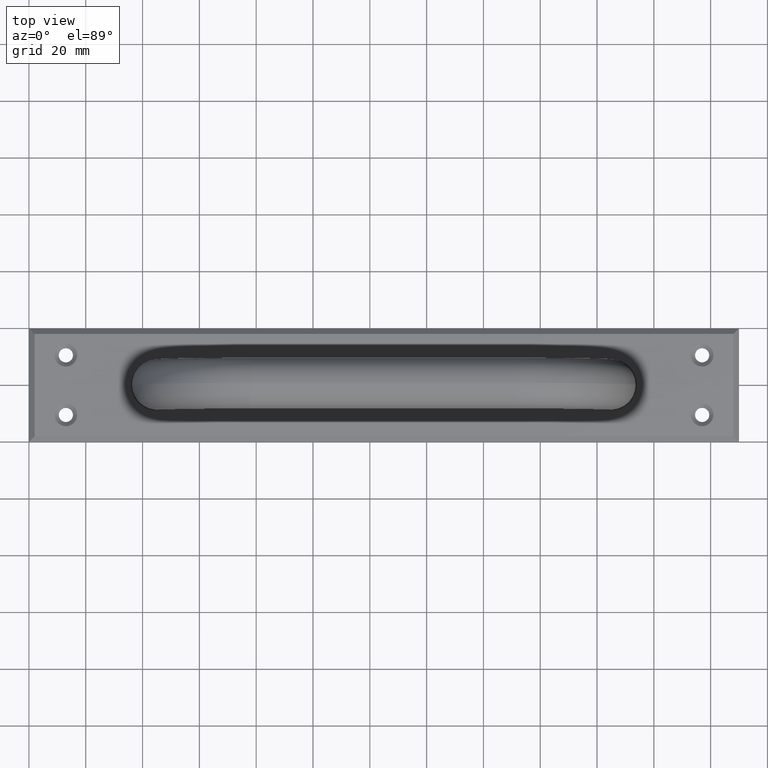
[diagram: clean part render]
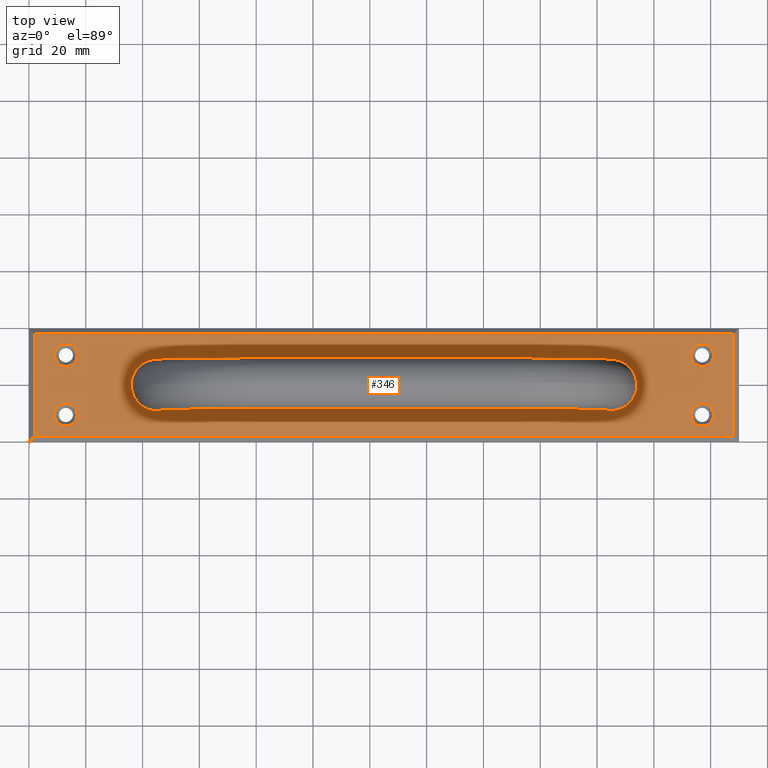
[diagram: same view with one face highlighted and labeled with its STEP entity id]
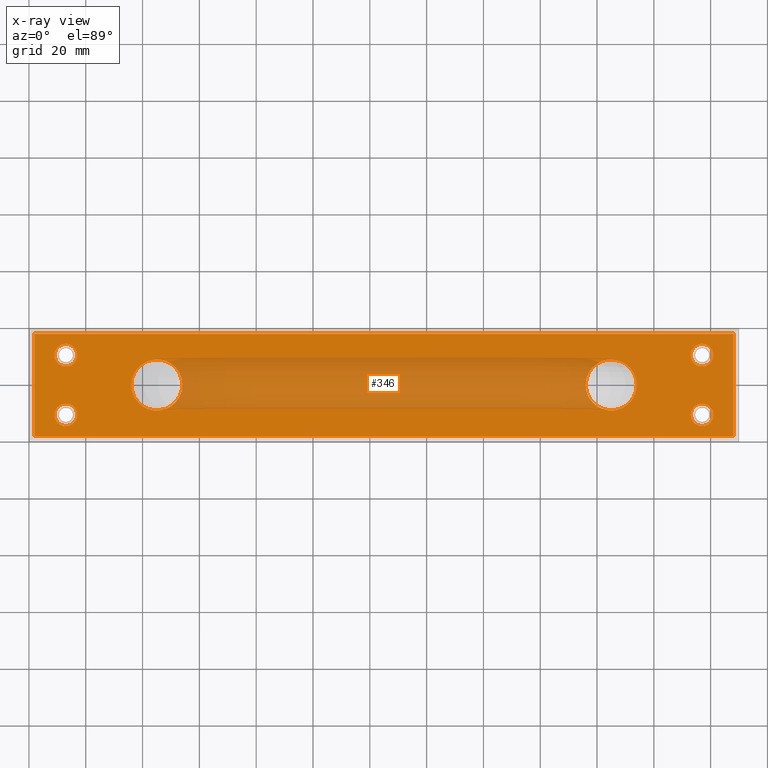
[diagram: x-ray of the same camera — body ghosted, the highlighted face saturated]
A machine part, top view. The second image highlights one B-rep face of the part: STEP entity #346.
The next image is the same camera in x-ray: the body ghosted, the highlighted face saturated — about 32% of this face is hidden behind the body in this view.
In plain terms, the highlighted planar face has unit normal (0, 0, 1).
Its self-contained STEP definition (entity closure, byte-faithful):
#16=LINE('',#557,#36);
#19=LINE('',#563,#39);
#20=LINE('',#565,#40);
#21=LINE('',#566,#41);
#36=VECTOR('',#465,36.);
#39=VECTOR('',#470,246.);
#40=VECTOR('',#471,36.);
#41=VECTOR('',#472,246.);
#56=PLANE('',#389);
#84=FACE_BOUND('',#145,.T.);
#85=FACE_BOUND('',#146,.T.);
#86=FACE_BOUND('',#147,.T.);
#87=FACE_BOUND('',#148,.T.);
#88=FACE_BOUND('',#149,.T.);
#89=FACE_BOUND('',#150,.T.);
#108=FACE_OUTER_BOUND('',#144,.T.);
#144=EDGE_LOOP('',(#279,#280,#281,#282));
#145=EDGE_LOOP('',(#283));
#146=EDGE_LOOP('',(#284));
#147=EDGE_LOOP('',(#285));
#148=EDGE_LOOP('',(#286));
#149=EDGE_LOOP('',(#287));
#150=EDGE_LOOP('',(#288));
#164=CIRCLE('',#359,9.);
#166=CIRCLE('',#362,9.);
#169=CIRCLE('',#369,4.);
#172=CIRCLE('',#374,4.);
#175=CIRCLE('',#379,4.);
#178=CIRCLE('',#384,4.);
#182=VERTEX_POINT('',#506);
#184=VERTEX_POINT('',#511);
#187=VERTEX_POINT('',#521);
#190=VERTEX_POINT('',#529);
#193=VERTEX_POINT('',#537);
#196=VERTEX_POINT('',#545);
#200=VERTEX_POINT('',#554);
#201=VERTEX_POINT('',#556);
#203=VERTEX_POINT('',#562);
#204=VERTEX_POINT('',#564);
#212=EDGE_CURVE('',#182,#182,#164,.T.);
#214=EDGE_CURVE('',#184,#184,#166,.T.);
#217=EDGE_CURVE('',#187,#187,#169,.T.);
#220=EDGE_CURVE('',#190,#190,#172,.T.);
#223=EDGE_CURVE('',#193,#193,#175,.T.);
#226=EDGE_CURVE('',#196,#196,#178,.T.);
#230=EDGE_CURVE('',#200,#201,#16,.T.);
#233=EDGE_CURVE('',#203,#200,#19,.T.);
#234=EDGE_CURVE('',#204,#203,#20,.T.);
#235=EDGE_CURVE('',#201,#204,#21,.T.);
#279=ORIENTED_EDGE('',*,*,#230,.F.);
#280=ORIENTED_EDGE('',*,*,#233,.F.);
#281=ORIENTED_EDGE('',*,*,#234,.F.);
#282=ORIENTED_EDGE('',*,*,#235,.F.);
#283=ORIENTED_EDGE('',*,*,#212,.T.);
#284=ORIENTED_EDGE('',*,*,#214,.T.);
#285=ORIENTED_EDGE('',*,*,#217,.T.);
#286=ORIENTED_EDGE('',*,*,#220,.T.);
#287=ORIENTED_EDGE('',*,*,#223,.T.);
#288=ORIENTED_EDGE('',*,*,#226,.T.);
#346=ADVANCED_FACE('',(#108,#84,#85,#86,#87,#88,#89),#56,.T.);
#359=AXIS2_PLACEMENT_3D('',#507,#404,#405);
#362=AXIS2_PLACEMENT_3D('',#512,#410,#411);
#369=AXIS2_PLACEMENT_3D('',#522,#424,#425);
#374=AXIS2_PLACEMENT_3D('',#530,#434,#435);
#379=AXIS2_PLACEMENT_3D('',#538,#444,#445);
#384=AXIS2_PLACEMENT_3D('',#546,#454,#455);
#389=AXIS2_PLACEMENT_3D('',#561,#468,#469);
#404=DIRECTION('center_axis',(0.,0.,-1.));
#405=DIRECTION('ref_axis',(1.,0.,0.));
#410=DIRECTION('center_axis',(0.,0.,-1.));
#411=DIRECTION('ref_axis',(-1.,0.,0.));
#424=DIRECTION('center_axis',(0.,0.,-1.));
#425=DIRECTION('ref_axis',(1.,0.,0.));
#434=DIRECTION('center_axis',(0.,0.,-1.));
#435=DIRECTION('ref_axis',(1.,0.,0.));
#444=DIRECTION('center_axis',(0.,0.,-1.));
#445=DIRECTION('ref_axis',(1.,0.,0.));
#454=DIRECTION('center_axis',(0.,0.,-1.));
#455=DIRECTION('ref_axis',(1.,0.,0.));
#465=DIRECTION('',(-3.67548784903353E-16,1.,0.));
#468=DIRECTION('center_axis',(0.,0.,1.));
#469=DIRECTION('ref_axis',(1.,0.,0.));
#470=DIRECTION('',(-1.,0.,0.));
#471=DIRECTION('',(0.,-1.,0.));
#472=DIRECTION('',(1.,-1.59872115546023E-16,0.));
#506=CARTESIAN_POINT('',(36.,20.,3.));
#507=CARTESIAN_POINT('Origin',(45.,20.,3.));
#511=CARTESIAN_POINT('',(214.,20.,3.));
#512=CARTESIAN_POINT('Origin',(205.,20.,3.));
#521=CARTESIAN_POINT('',(17.,9.50000000000001,3.));
#522=CARTESIAN_POINT('Origin',(13.,9.50000000000001,3.));
#529=CARTESIAN_POINT('',(17.,30.5,3.));
#530=CARTESIAN_POINT('Origin',(13.,30.5,3.));
#537=CARTESIAN_POINT('',(241.,30.5,3.));
#538=CARTESIAN_POINT('Origin',(237.,30.5,3.));
#545=CARTESIAN_POINT('',(241.,9.50000000000001,3.));
#546=CARTESIAN_POINT('Origin',(237.,9.50000000000001,3.));
#554=CARTESIAN_POINT('',(1.99999999999999,2.,3.));
#556=CARTESIAN_POINT('',(1.99999999999999,38.,3.));
#557=CARTESIAN_POINT('',(1.99999999999998,30.,3.));
#561=CARTESIAN_POINT('Origin',(125.,20.,3.));
#562=CARTESIAN_POINT('',(248.,2.,3.));
#563=CARTESIAN_POINT('',(62.5,2.,3.));
#564=CARTESIAN_POINT('',(248.,38.,3.));
#565=CARTESIAN_POINT('',(248.,10.,3.));
#566=CARTESIAN_POINT('',(187.5,38.,3.));